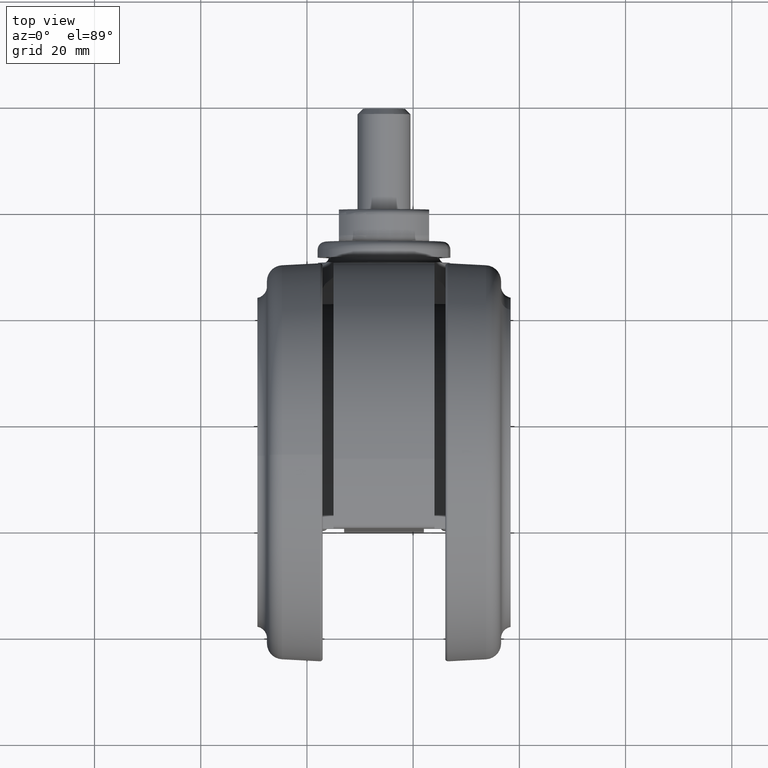
[diagram: clean part render]
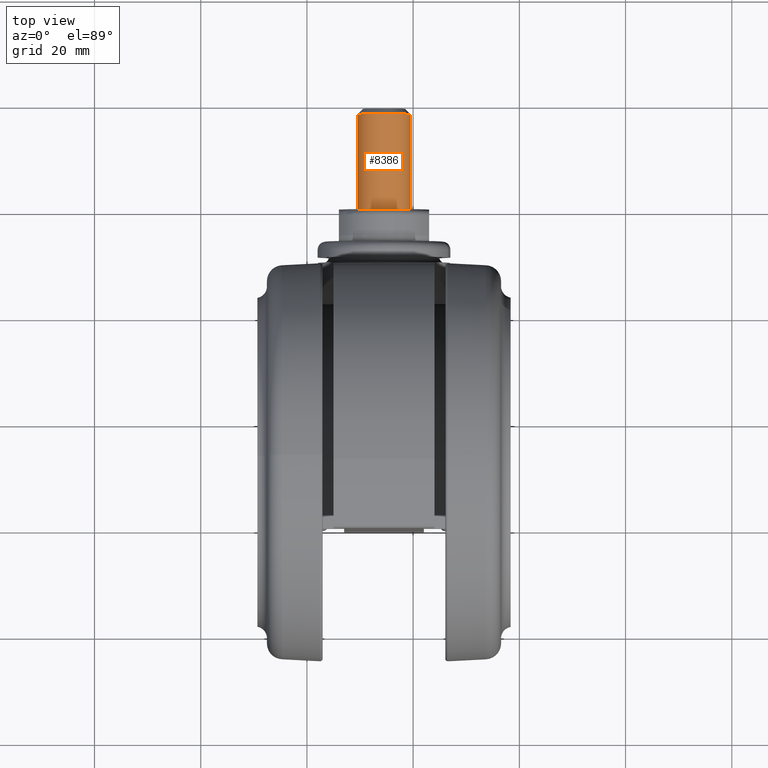
[diagram: same view with one face highlighted and labeled with its STEP entity id]
A machine part, top view. The second image highlights one B-rep face of the part: STEP entity #8386.
In plain terms, the highlighted cylindrical surface (edge-blend (fillet) strip) has radius 5 mm, axis along (0, -1, 0).
Its self-contained STEP definition (entity closure, byte-faithful):
#345 = AXIS2_PLACEMENT_3D ( 'NONE', #29710, #2916, #34196 ) ;
#1064 = CYLINDRICAL_SURFACE ( 'NONE', #23172, 5.000000000000000900 ) ;
#1618 = VERTEX_POINT ( 'NONE', #41096 ) ;
#1910 = CARTESIAN_POINT ( 'NONE',  ( 50.50270052503015700, -49.78792664571526700, -18.84999999999990500 ) ) ;
#2490 = FACE_OUTER_BOUND ( 'NONE', #19987, .T. ) ;
#2916 = DIRECTION ( 'NONE',  ( -0.9199289582488630000, 0.3920850823165320000, -0.0000000000000000000 ) ) ;
#5166 = ORIENTED_EDGE ( 'NONE', *, *, #34240, .T. ) ;
#6153 = CARTESIAN_POINT ( 'NONE',  ( 33.96237785571558700, -42.73823686566402100, -28.84999999999989800 ) ) ;
#8386 = ADVANCED_FACE ( 'NONE', ( #2490 ), #1064, .T. ) ;
#10303 = CARTESIAN_POINT ( 'NONE',  ( 33.96237785571558700, -42.73823686566402800, -23.84999999999989800 ) ) ;
#14217 = DIRECTION ( 'NONE',  ( 0.0000000000000000000, 0.0000000000000000000, -1.000000000000000000 ) ) ;
#14309 = DIRECTION ( 'NONE',  ( -0.9199289582488630000, 0.3920850823165320500, 0.0000000000000000000 ) ) ;
#14466 = EDGE_CURVE ( 'NONE', #17843, #1618, #26662, .T. ) ;
#14819 = DIRECTION ( 'NONE',  ( 0.0000000000000000000, 0.0000000000000000000, 1.000000000000000000 ) ) ;
#14968 = CARTESIAN_POINT ( 'NONE',  ( 50.50270052503015700, -49.78792664571526700, -28.84999999999989500 ) ) ;
#17843 = VERTEX_POINT ( 'NONE', #1910 ) ;
#18406 = VERTEX_POINT ( 'NONE', #6153 ) ;
#18493 = CIRCLE ( 'NONE', #27715, 5.000000000000000900 ) ;
#19987 = EDGE_LOOP ( 'NONE', ( #34552, #22579, #28979, #5166 ) ) ;
#22579 = ORIENTED_EDGE ( 'NONE', *, *, #35011, .T. ) ;
#23172 = AXIS2_PLACEMENT_3D ( 'NONE', #27477, #49978, #14217 ) ;
#25718 = VECTOR ( 'NONE', #29454, 999.9999999999998900 ) ;
#26662 = LINE ( 'NONE', #41290, #49076 ) ;
#27477 = CARTESIAN_POINT ( 'NONE',  ( 51.44102806244399100, -50.18785342967812800, -23.84999999999989800 ) ) ;
#27715 = AXIS2_PLACEMENT_3D ( 'NONE', #10303, #41621, #14819 ) ;
#28979 = ORIENTED_EDGE ( 'NONE', *, *, #46688, .T. ) ;
#29454 = DIRECTION ( 'NONE',  ( -0.9199289582488630000, 0.3920850823165320500, 0.0000000000000000000 ) ) ;
#29616 = CIRCLE ( 'NONE', #345, 5.000000000000000900 ) ;
#29710 = CARTESIAN_POINT ( 'NONE',  ( 50.50270052503015700, -49.78792664571526700, -23.84999999999989800 ) ) ;
#34196 = DIRECTION ( 'NONE',  ( 0.0000000000000000000, 0.0000000000000000000, 1.000000000000000000 ) ) ;
#34240 = EDGE_CURVE ( 'NONE', #18406, #1618, #18493, .T. ) ;
#34552 = ORIENTED_EDGE ( 'NONE', *, *, #14466, .F. ) ;
#34678 = VERTEX_POINT ( 'NONE', #14968 ) ;
#35011 = EDGE_CURVE ( 'NONE', #17843, #34678, #29616, .T. ) ;
#41096 = CARTESIAN_POINT ( 'NONE',  ( 33.96237785571558700, -42.73823686566402100, -18.84999999999989800 ) ) ;
#41290 = CARTESIAN_POINT ( 'NONE',  ( 51.44102806244399100, -50.18785342967812800, -18.84999999999989800 ) ) ;
#41621 = DIRECTION ( 'NONE',  ( 0.9199289582488630000, -0.3920850823165320000, 0.0000000000000000000 ) ) ;
#46688 = EDGE_CURVE ( 'NONE', #34678, #18406, #49525, .T. ) ;
#49076 = VECTOR ( 'NONE', #14309, 999.9999999999998900 ) ;
#49525 = LINE ( 'NONE', #56269, #25718 ) ;
#49978 = DIRECTION ( 'NONE',  ( -0.9199289582488630000, 0.3920850823165320000, 0.0000000000000000000 ) ) ;
#56269 = CARTESIAN_POINT ( 'NONE',  ( 51.44102806244399100, -50.18785342967812800, -28.84999999999989800 ) ) ;